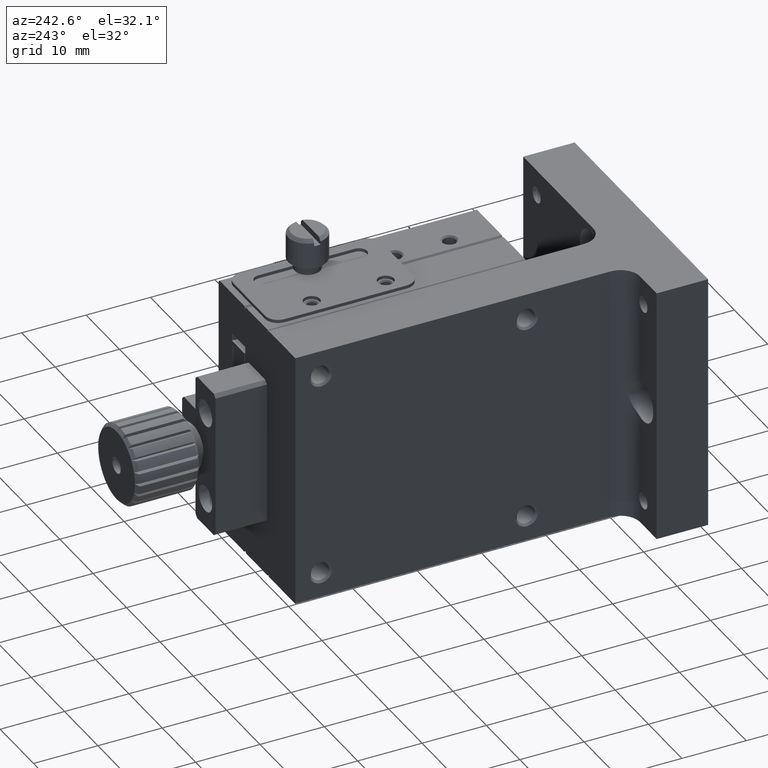
[diagram: clean part render]
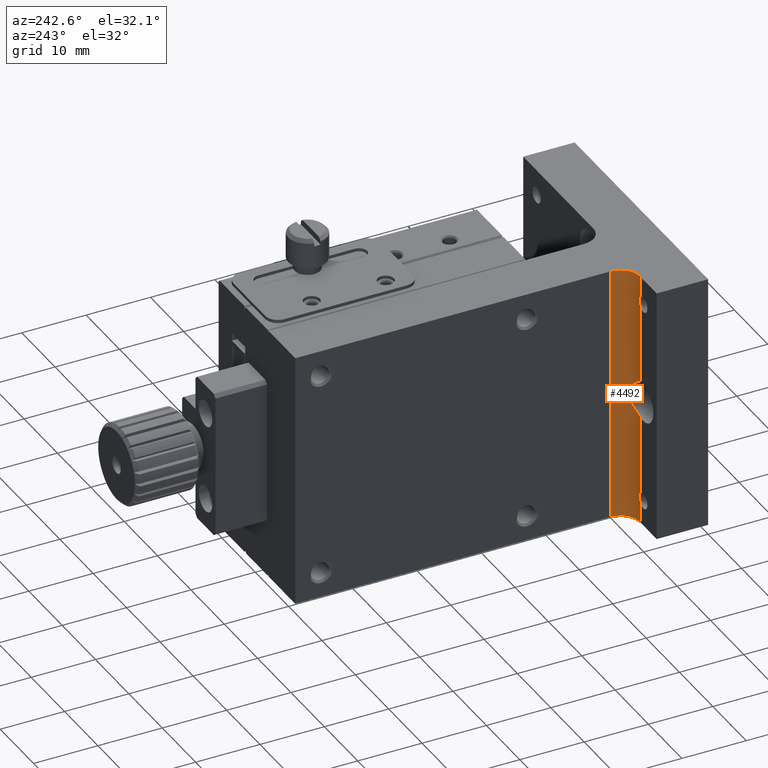
[diagram: same view with one face highlighted and labeled with its STEP entity id]
A machine part, auxiliary view. The second image highlights one B-rep face of the part: STEP entity #4492.
In plain terms, the highlighted cylindrical surface (edge-blend (fillet) strip) has radius 3 mm, axis along (0, 0, 1).
Its self-contained STEP definition (entity closure, byte-faithful):
#19 = CARTESIAN_POINT ( 'NONE',  ( 6.066914866722716404, 8.184463707108875496, -17.80366905895773755 ) ) ;
#67 = CARTESIAN_POINT ( 'NONE',  ( 6.987624373339075490, 8.752693045605848710, -20.31384792980401599 ) ) ;
#146 = VECTOR ( 'NONE', #6772, 1000.000000000000000 ) ;
#235 = CARTESIAN_POINT ( 'NONE',  ( 5.209632665476855884, 8.007077053406662870, -3.745465439338193647 ) ) ;
#415 = CARTESIAN_POINT ( 'NONE',  ( 5.229724419590636941, 8.008808474550486167, -36.25363017211729755 ) ) ;
#562 = EDGE_CURVE ( 'NONE', #9973, #7062, #8638, .T. ) ;
#667 = CIRCLE ( 'NONE', #6553, 3.000000000000000888 ) ;
#753 = CARTESIAN_POINT ( 'NONE',  ( 6.999986390084820265, 8.763919849422100228, -19.84172024991870131 ) ) ;
#850 = CARTESIAN_POINT ( 'NONE',  ( 5.000000000000028422, 8.000000000000000000, -3.284688704129494319 ) ) ;
#861 = CARTESIAN_POINT ( 'NONE',  ( 6.537898700766960225, 8.422278688137936342, -21.60673917792811949 ) ) ;
#1058 = CARTESIAN_POINT ( 'NONE',  ( 5.131436424098056115, 8.002624800746458433, -35.50215399350386747 ) ) ;
#1141 = LINE ( 'NONE', #4350, #146 ) ;
#1155 = CARTESIAN_POINT ( 'NONE',  ( 5.074677141987180562, 8.000000000000000000, -35.38908680663153206 ) ) ;
#1159 = VERTEX_POINT ( 'NONE', #9631 ) ;
#1164 = AXIS2_PLACEMENT_3D ( 'NONE', #5596, #7029, #10262 ) ;
#1346 = CARTESIAN_POINT ( 'NONE',  ( 6.987189302511392697, 8.752306015370121983, -19.68221813293347111 ) ) ;
#1584 = CARTESIAN_POINT ( 'NONE',  ( 6.269513539203217967, 8.279479781209719391, -21.96777984800799643 ) ) ;
#1588 = VERTEX_POINT ( 'NONE', #850 ) ;
#1637 = B_SPLINE_CURVE_WITH_KNOTS ( 'NONE', 3,
 ( #1811, #7409, #3496, #235, #4229, #2554, #6562, #5969 ),
 .UNSPECIFIED., .F., .F.,
 ( 4, 2, 2, 4 ),
 ( 1.563658610346375379E-18, 0.0003795813622497588727, 0.0007591627244995161191, 0.001518325448999033322 ),
 .UNSPECIFIED. ) ;
#1811 = CARTESIAN_POINT ( 'NONE',  ( 5.000000000000028422, 8.000000000000000000, -3.284688704129494319 ) ) ;
#1981 = ORIENTED_EDGE ( 'NONE', *, *, #9952, .F. ) ;
#1999 = CARTESIAN_POINT ( 'NONE',  ( 5.000000000000026645, 8.000000000000000000, -17.17157287525381903 ) ) ;
#2111 = CARTESIAN_POINT ( 'NONE',  ( 5.000000000000030198, 8.000000000000000000, 0.000000000000000000 ) ) ;
#2242 = EDGE_CURVE ( 'NONE', #2925, #9973, #9968, .T. ) ;
#2554 = CARTESIAN_POINT ( 'NONE',  ( 5.229724419590635165, 8.008808474550486167, -4.253630172117289554 ) ) ;
#2621 = ORIENTED_EDGE ( 'NONE', *, *, #3063, .F. ) ;
#2783 = LINE ( 'NONE', #7536, #5505 ) ;
#2836 = CARTESIAN_POINT ( 'NONE',  ( 5.000000000000030198, 8.000000000000000000, -35.28468870412950054 ) ) ;
#2879 = CARTESIAN_POINT ( 'NONE',  ( 5.000000000000030198, 8.000000000000000000, -40.00000000000000000 ) ) ;
#2925 = VERTEX_POINT ( 'NONE', #1999 ) ;
#2926 = CARTESIAN_POINT ( 'NONE',  ( 5.700775746418938361, 8.080230229577592738, -22.47609121149130118 ) ) ;
#2980 = ORIENTED_EDGE ( 'NONE', *, *, #10320, .F. ) ;
#3061 = ORIENTED_EDGE ( 'NONE', *, *, #9603, .F. ) ;
#3063 = EDGE_CURVE ( 'NONE', #7852, #2925, #4777, .T. ) ;
#3109 = DIRECTION ( 'NONE',  ( 1.000000000000000000, -1.156482317317871133E-15, 0.000000000000000000 ) ) ;
#3112 = CARTESIAN_POINT ( 'NONE',  ( 5.571287315256920891, 8.051621716432871168, -22.56038113310402338 ) ) ;
#3171 = CARTESIAN_POINT ( 'NONE',  ( 6.624474020064375246, 8.470054543796692315, -18.51569336746656091 ) ) ;
#3201 = DIRECTION ( 'NONE',  ( -0.000000000000000000, 0.000000000000000000, -1.000000000000000000 ) ) ;
#3276 = CARTESIAN_POINT ( 'NONE',  ( 6.364801013706937738, 8.326594350190552163, -21.85209523697201206 ) ) ;
#3411 = VERTEX_POINT ( 'NONE', #2879 ) ;
#3496 = CARTESIAN_POINT ( 'NONE',  ( 5.131436424098055227, 8.002624800746458433, -3.502153993503869689 ) ) ;
#3518 = CARTESIAN_POINT ( 'NONE',  ( 5.000000000000030198, 11.00000000000000000, -40.00000000000000000 ) ) ;
#3626 = VERTEX_POINT ( 'NONE', #4922 ) ;
#3713 = CARTESIAN_POINT ( 'NONE',  ( 5.000000000000026645, 8.000000000000000000, -17.17157287525381903 ) ) ;
#3717 = DIRECTION ( 'NONE',  ( 0.000000000000000000, 0.000000000000000000, 1.000000000000000000 ) ) ;
#3951 = CARTESIAN_POINT ( 'NONE',  ( 5.000000000000026645, 8.000000000000000000, -22.82842712474618097 ) ) ;
#4004 = CARTESIAN_POINT ( 'NONE',  ( 5.574383724464653689, 8.044389185550452126, -17.42758429545305177 ) ) ;
#4152 = ORIENTED_EDGE ( 'NONE', *, *, #7204, .T. ) ;
#4229 = CARTESIAN_POINT ( 'NONE',  ( 5.229387071331334624, 8.008782591615018376, -3.871556551627548970 ) ) ;
#4325 = EDGE_LOOP ( 'NONE', ( #2621, #1981, #9367, #2980, #5979, #4152, #3061, #9353, #10362, #8628 ) ) ;
#4344 = VECTOR ( 'NONE', #7306, 1000.000000000000000 ) ;
#4350 = CARTESIAN_POINT ( 'NONE',  ( 5.000000000000030198, 8.000000000000000000, -40.00000000000000000 ) ) ;
#4362 = FACE_OUTER_BOUND ( 'NONE', #4325, .T. ) ;
#4492 = ADVANCED_FACE ( 'NONE', ( #4362 ), #4514, .F. ) ;
#4514 = CYLINDRICAL_SURFACE ( 'NONE', #6176, 3.000000000000000888 ) ;
#4558 = CARTESIAN_POINT ( 'NONE',  ( 6.616034343802193796, 8.471152798591456090, -21.47617927106372449 ) ) ;
#4777 = LINE ( 'NONE', #10439, #8003 ) ;
#4800 = CARTESIAN_POINT ( 'NONE',  ( 6.750879551152005220, 8.562571854232874813, -21.20640068937503386 ) ) ;
#4855 = CIRCLE ( 'NONE', #1164, 3.000000000000000888 ) ;
#4858 = CARTESIAN_POINT ( 'NONE',  ( 6.276349577572697847, 8.277781858656833691, -18.02281445937407156 ) ) ;
#4878 = CARTESIAN_POINT ( 'NONE',  ( 8.000000000000030198, 10.99999999999999645, -40.00000000000000000 ) ) ;
#4922 = CARTESIAN_POINT ( 'NONE',  ( 8.000000000000030198, 10.99999999999999822, -40.00000000000000000 ) ) ;
#5197 = DIRECTION ( 'NONE',  ( 1.000000000000000000, 0.000000000000000000, 0.000000000000000000 ) ) ;
#5251 = CARTESIAN_POINT ( 'NONE',  ( 5.229387071331335513, 8.008782591615020152, -35.87155655162754186 ) ) ;
#5505 = VECTOR ( 'NONE', #9067, 1000.000000000000000 ) ;
#5596 = CARTESIAN_POINT ( 'NONE',  ( 5.000000000000030198, 11.00000000000000000, -40.00000000000000000 ) ) ;
#5698 = CARTESIAN_POINT ( 'NONE',  ( 6.902068805547814989, 8.679287851067998716, -20.77549464649903399 ) ) ;
#5743 = VERTEX_POINT ( 'NONE', #2111 ) ;
#5931 = LINE ( 'NONE', #4878, #4344 ) ;
#5969 = CARTESIAN_POINT ( 'NONE',  ( 5.000000000000028422, 8.000000000000000000, -4.715311295870505681 ) ) ;
#5979 = ORIENTED_EDGE ( 'NONE', *, *, #6820, .F. ) ;
#6036 = CARTESIAN_POINT ( 'NONE',  ( 5.000000000000030198, 8.000000000000000000, -35.28468870412950054 ) ) ;
#6053 = CARTESIAN_POINT ( 'NONE',  ( 5.209632665476854996, 8.007077053406659317, -35.74546543933819009 ) ) ;
#6176 = AXIS2_PLACEMENT_3D ( 'NONE', #3518, #3717, #5197 ) ;
#6388 = CARTESIAN_POINT ( 'NONE',  ( 6.759288587583176522, 8.566984482498334330, -18.78261994980718796 ) ) ;
#6489 = CARTESIAN_POINT ( 'NONE',  ( 5.150292715080058592, 7.999999999999994671, -22.77529062574816265 ) ) ;
#6553 = AXIS2_PLACEMENT_3D ( 'NONE', #10350, #8801, #3109 ) ;
#6562 = CARTESIAN_POINT ( 'NONE',  ( 5.149347435883468549, 8.000000000000003553, -4.506524664447759676 ) ) ;
#6715 = CARTESIAN_POINT ( 'NONE',  ( 5.000000000000031974, 8.000000000000000000, -36.71531129587050657 ) ) ;
#6772 = DIRECTION ( 'NONE',  ( -0.000000000000000000, 0.000000000000000000, -1.000000000000000000 ) ) ;
#6820 = EDGE_CURVE ( 'NONE', #3626, #1159, #5931, .T. ) ;
#6839 = CARTESIAN_POINT ( 'NONE',  ( 5.149347435883473878, 8.000000000000000000, -36.50652466444775257 ) ) ;
#7029 = DIRECTION ( 'NONE',  ( -0.000000000000000000, -0.000000000000000000, -1.000000000000000000 ) ) ;
#7062 = VERTEX_POINT ( 'NONE', #6036 ) ;
#7204 = EDGE_CURVE ( 'NONE', #3626, #3411, #4855, .T. ) ;
#7234 = CARTESIAN_POINT ( 'NONE',  ( 6.938874009136101861, 8.710500759236559531, -20.62243029942014161 ) ) ;
#7284 = CARTESIAN_POINT ( 'NONE',  ( 5.300865063321500870, 8.000000000000001776, -17.27794473850219248 ) ) ;
#7306 = DIRECTION ( 'NONE',  ( 0.000000000000000000, 0.000000000000000000, 1.000000000000000000 ) ) ;
#7409 = CARTESIAN_POINT ( 'NONE',  ( 5.074677141987178786, 8.000000000000001776, -3.389086806631529836 ) ) ;
#7536 = CARTESIAN_POINT ( 'NONE',  ( 5.000000000000030198, 8.000000000000000000, -40.00000000000000000 ) ) ;
#7782 = CARTESIAN_POINT ( 'NONE',  ( 7.000013587697942796, 8.763944175706564366, -20.15776341023080320 ) ) ;
#7852 = VERTEX_POINT ( 'NONE', #10172 ) ;
#7912 = DIRECTION ( 'NONE',  ( -0.000000000000000000, 0.000000000000000000, -1.000000000000000000 ) ) ;
#7959 = B_SPLINE_CURVE_WITH_KNOTS ( 'NONE', 3,
 ( #2836, #1155, #1058, #6053, #5251, #415, #6839, #9218 ),
 .UNSPECIFIED., .F., .F.,
 ( 4, 2, 2, 4 ),
 ( 0.000000000000000000, 0.0003795813622497617459, 0.0007591627244995234917, 0.001518325448999026384 ),
 .UNSPECIFIED. ) ;
#7976 = CARTESIAN_POINT ( 'NONE',  ( 6.938185673166424650, 8.709915750700540471, -19.37442011375496165 ) ) ;
#8003 = VECTOR ( 'NONE', #3201, 1000.000000000000000 ) ;
#8089 = CARTESIAN_POINT ( 'NONE',  ( 6.060221936024837497, 8.191294900948351554, -22.18594025745791498 ) ) ;
#8249 = CARTESIAN_POINT ( 'NONE',  ( 5.000000000000026645, 8.000000000000000000, -22.82842712474618097 ) ) ;
#8628 = ORIENTED_EDGE ( 'NONE', *, *, #2242, .F. ) ;
#8638 = LINE ( 'NONE', #9388, #9131 ) ;
#8801 = DIRECTION ( 'NONE',  ( -0.000000000000000000, -0.000000000000000000, -1.000000000000000000 ) ) ;
#8805 = CARTESIAN_POINT ( 'NONE',  ( 6.902054401653884952, 8.679255665987685830, -19.22411200944667442 ) ) ;
#8862 = CARTESIAN_POINT ( 'NONE',  ( 6.808147922671349939, 8.605386939612591490, -21.06663046238092818 ) ) ;
#9067 = DIRECTION ( 'NONE',  ( -0.000000000000000000, 0.000000000000000000, -1.000000000000000000 ) ) ;
#9131 = VECTOR ( 'NONE', #7912, 1000.000000000000000 ) ;
#9141 = EDGE_CURVE ( 'NONE', #7062, #9956, #7959, .T. ) ;
#9165 = EDGE_CURVE ( 'NONE', #5743, #1588, #2783, .T. ) ;
#9218 = CARTESIAN_POINT ( 'NONE',  ( 5.000000000000031974, 8.000000000000000000, -36.71531129587050657 ) ) ;
#9353 = ORIENTED_EDGE ( 'NONE', *, *, #9141, .F. ) ;
#9367 = ORIENTED_EDGE ( 'NONE', *, *, #9165, .F. ) ;
#9388 = CARTESIAN_POINT ( 'NONE',  ( 5.000000000000030198, 8.000000000000000000, -40.00000000000000000 ) ) ;
#9554 = CARTESIAN_POINT ( 'NONE',  ( 5.296332357959861348, 8.011440006757498011, -22.70998483234658494 ) ) ;
#9603 = EDGE_CURVE ( 'NONE', #9956, #3411, #1141, .T. ) ;
#9631 = CARTESIAN_POINT ( 'NONE',  ( 8.000000000000030198, 10.99999999999999822, 0.000000000000000000 ) ) ;
#9714 = CARTESIAN_POINT ( 'NONE',  ( 5.945131687741585402, 8.149935395141316263, -22.28913270575887040 ) ) ;
#9952 = EDGE_CURVE ( 'NONE', #1588, #7852, #1637, .T. ) ;
#9956 = VERTEX_POINT ( 'NONE', #6715 ) ;
#9968 = B_SPLINE_CURVE_WITH_KNOTS ( 'NONE', 3,
 ( #3713, #7284, #4004, #19, #4858, #3171, #6388, #8805, #7976, #1346, #753, #7782, #67, #7234, #5698, #8862, #4800, #4558, #861, #3276, #1584, #8089, #9714, #2926, #3112, #9554, #6489, #3951 ),
 .UNSPECIFIED., .F., .F.,
 ( 4, 2, 2, 2, 2, 2, 2, 2, 2, 2, 2, 2, 2, 4 ),
 ( 1.734723475976806902E-18, 0.0009401447641671124714, 0.001880289528334223208, 0.002820434292501334053, 0.003290506674584889150, 0.003760579056668444681, 0.004230651438752000212, 0.004700723820835555310, 0.005170796202919110407, 0.005640868585002666372, 0.006110940967086221469, 0.006581013349169776566, 0.007051085731253332531, 0.007521158113336887628 ),
 .UNSPECIFIED. ) ;
#9973 = VERTEX_POINT ( 'NONE', #8249 ) ;
#10172 = CARTESIAN_POINT ( 'NONE',  ( 5.000000000000028422, 8.000000000000000000, -4.715311295870505681 ) ) ;
#10262 = DIRECTION ( 'NONE',  ( 1.000000000000000000, -1.156482317317871133E-15, 0.000000000000000000 ) ) ;
#10320 = EDGE_CURVE ( 'NONE', #1159, #5743, #667, .T. ) ;
#10350 = CARTESIAN_POINT ( 'NONE',  ( 5.000000000000030198, 11.00000000000000000, 0.000000000000000000 ) ) ;
#10362 = ORIENTED_EDGE ( 'NONE', *, *, #562, .F. ) ;
#10439 = CARTESIAN_POINT ( 'NONE',  ( 5.000000000000030198, 8.000000000000000000, -40.00000000000000000 ) ) ;